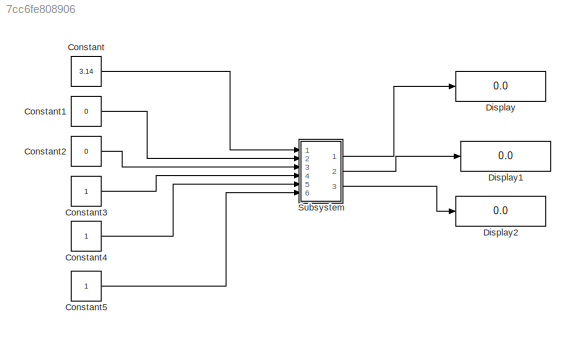
MODEL slx_7cc6fe808906
KIND model
CONFIG AbsTol = auto
CONFIG EnableMultiTasking = off
CONFIG FixedStep = auto
CONFIG MaxStep = auto
CONFIG MinStep = auto
CONFIG RelTol = 1e-3
CONFIG SampleTimeConstraint = Unconstrained
CONFIG Solver = VariableStepAuto
CONFIG SolverName = VariableStepAuto
CONFIG StartTime = 0.0
CONFIG StopTime = 10.0
BLOCK [Constant] Constant
  Value = 3.14
BLOCK [Constant] Constant1
  Value = 0
BLOCK [Constant] Constant2
  Value = 0
BLOCK [Constant] Constant3
BLOCK [Constant] Constant4
BLOCK [Constant] Constant5
BLOCK [Display] Display
  Decimation = 1
  Ports = [1]
BLOCK [Display] Display1
  Decimation = 1
  Ports = [1]
BLOCK [Display] Display2
  Decimation = 1
  Ports = [1]
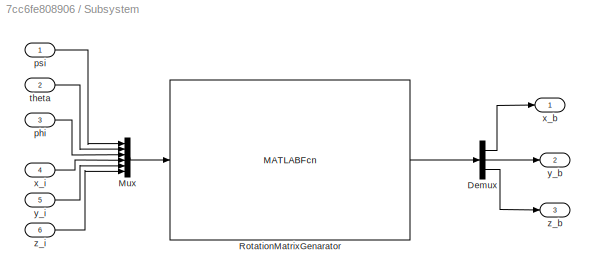
BLOCK [SubSystem] Subsystem
  Ports = [6, 3]
  RequestExecContextInheritance = off
  Variant = off
BLOCK [Demux] Subsystem/Demux
  DisplayOption = bar
  Outputs = 3
  Ports = [1, 3]
BLOCK [Mux] Subsystem/Mux
  DisplayOption = bar
  Inputs = 6
  Ports = [6, 1]
BLOCK [MATLABFcn] Subsystem/RotationMatrixGenarator
  MATLABFcn = R
  Ports = [1, 1]
BLOCK [Inport] Subsystem/phi
  IconDisplay = Port number
  OutMax = 0
  OutMin = 0
  Port = 3
BLOCK [Inport] Subsystem/psi
  IconDisplay = Port number
  OutMax = pi
  OutMin = -pi
BLOCK [Inport] Subsystem/theta
  IconDisplay = Port number
  OutMax = 0
  OutMin = 0
  Port = 2
BLOCK [Outport] Subsystem/x_b
  IconDisplay = Port number
BLOCK [Inport] Subsystem/x_i 
  IconDisplay = Port number
  OutMax = 0
  OutMin = 0
  Port = 4
BLOCK [Outport] Subsystem/y_b
  IconDisplay = Port number
  Port = 2
BLOCK [Inport] Subsystem/y_i
  IconDisplay = Port number
  OutMax = 1
  OutMin = 1
  Port = 5
BLOCK [Outport] Subsystem/z_b
  IconDisplay = Port number
  Port = 3
BLOCK [Inport] Subsystem/z_i
  IconDisplay = Port number
  OutMax = 1
  OutMin = 1
  Port = 6
LINE Constant1:1 -> Subsystem:2
LINE Constant2:1 -> Subsystem:3
LINE Constant3:1 -> Subsystem:4
LINE Constant4:1 -> Subsystem:5
LINE Constant5:1 -> Subsystem:6
LINE Constant:1 -> Subsystem:1
LINE Subsystem/Demux:1 -> Subsystem/x_b:1
LINE Subsystem/Demux:2 -> Subsystem/y_b:1
LINE Subsystem/Demux:3 -> Subsystem/z_b:1
LINE Subsystem/Mux:1 -> Subsystem/RotationMatrixGenarator:1
LINE Subsystem/RotationMatrixGenarator:1 -> Subsystem/Demux:1
LINE Subsystem/phi:1 -> Subsystem/Mux:3
LINE Subsystem/psi:1 -> Subsystem/Mux:1
LINE Subsystem/theta:1 -> Subsystem/Mux:2
LINE Subsystem/x_i :1 -> Subsystem/Mux:4
LINE Subsystem/y_i:1 -> Subsystem/Mux:5
LINE Subsystem/z_i:1 -> Subsystem/Mux:6
LINE Subsystem:1 -> Display:1
LINE Subsystem:2 -> Display1:1
LINE Subsystem:3 -> Display2:1
